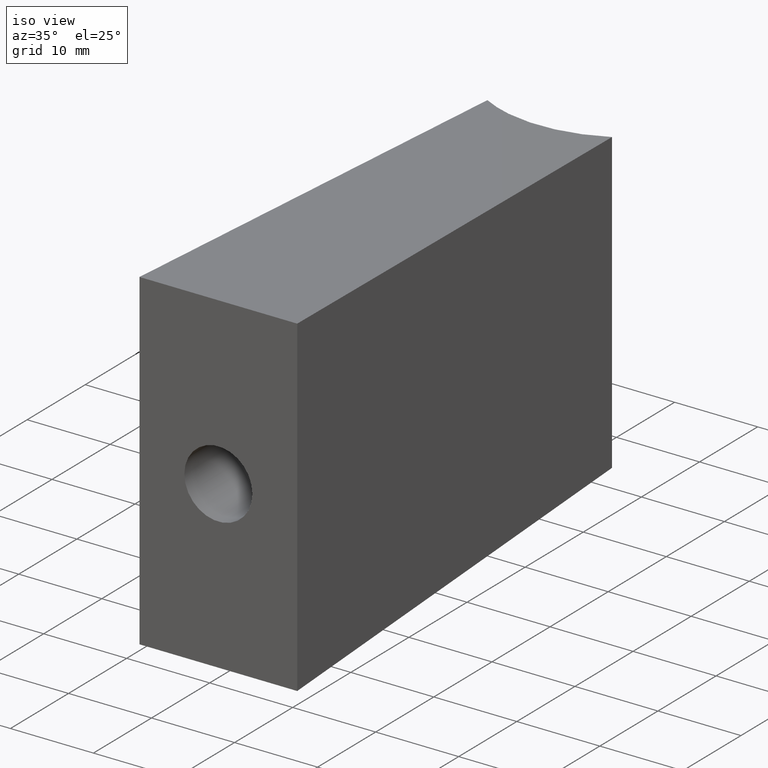
[diagram: clean part render]
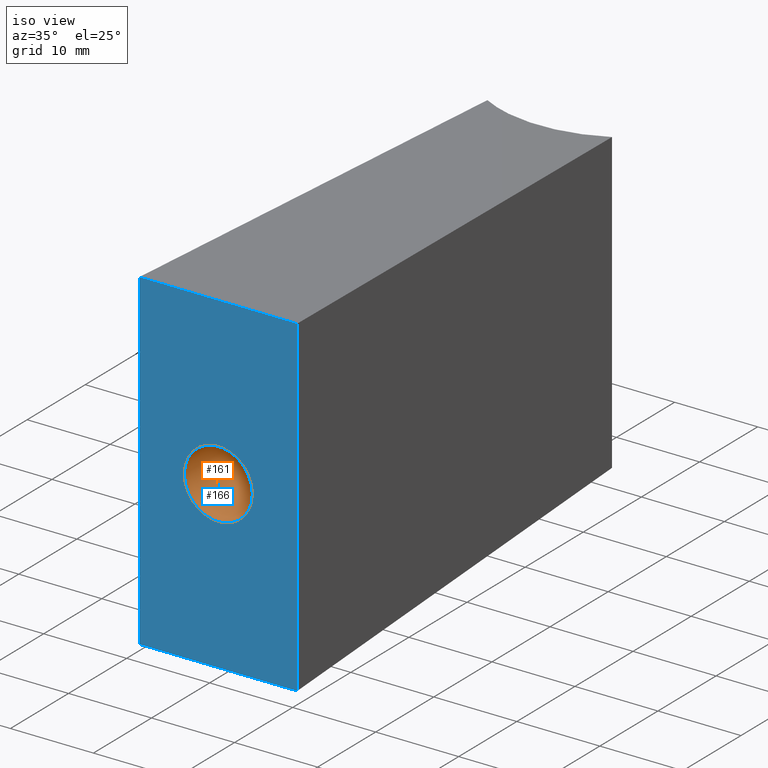
[diagram: same view with the hole feature highlighted: cylindrical wall and planar end face, labeled with their STEP entity ids]
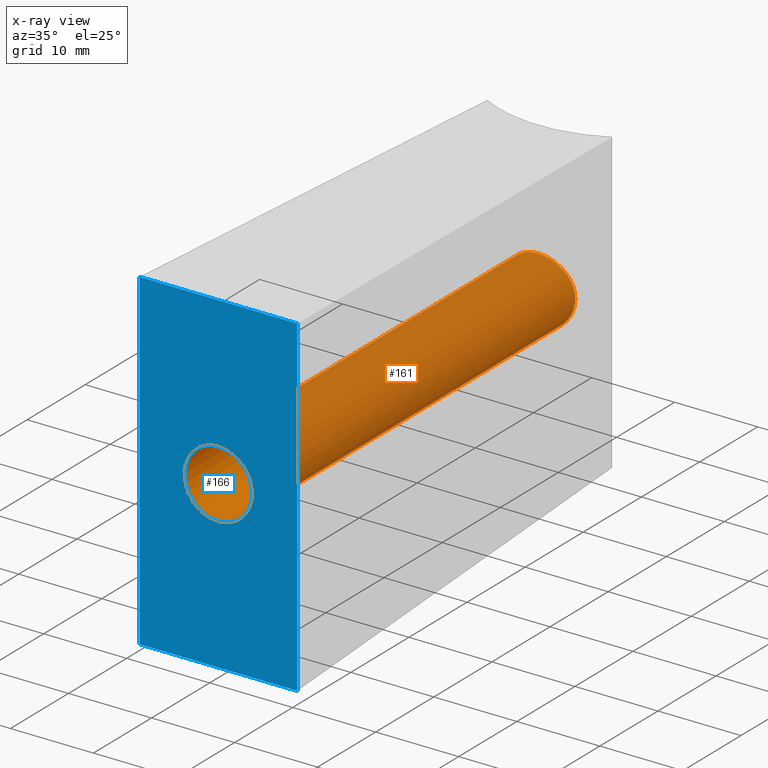
[diagram: x-ray of the same camera — body ghosted, the hole faces saturated]
A machine part, iso view. The highlighted faces form one hole feature of diameter 8.2 mm: the cylindrical wall (entity #161, orange) and its adjacent planar end face (entity #166, blue) — they share a circular edge in the B-rep.
The next image is the same camera in x-ray (body ghosted, the hole faces saturated) — the bore reads through the body.
Wall:
#15=CIRCLE('',#175,4.1);
#24=FACE_BOUND('',#41,.T.);
#26=B_SPLINE_CURVE_WITH_KNOTS('',3,(#234,#235,#236,#237,#238,#239,#240,
#241,#242,#243,#244,#245,#246,#247,#248,#249,#250,#251,#252,#253,#254,#255,
#256,#257,#258,#259,#260,#261,#262,#263,#264,#265,#266,#267),
 .UNSPECIFIED.,.T.,.F.,(4,2,2,2,2,2,2,2,2,2,2,2,2,2,2,2,4),(0.,0.155312931765757,
0.310625863531513,0.465907391265895,0.621188919000277,0.776470446734659,
0.931751974469041,1.0870649062348,1.24237783800055,1.39769076976631,1.55300370153207,
1.70828522926645,1.86356675700083,2.01884828473521,2.1741298124696,2.32944274423535,
2.48475567600111),.UNSPECIFIED.);
#30=FACE_OUTER_BOUND('',#40,.T.);
#40=EDGE_LOOP('',(#131));
#41=EDGE_LOOP('',(#132));
#86=VERTEX_POINT('',#233);
#92=VERTEX_POINT('',#283);
#100=EDGE_CURVE('',#86,#86,#26,.T.);
#108=EDGE_CURVE('',#92,#92,#15,.T.);
#131=ORIENTED_EDGE('',*,*,#100,.T.);
#132=ORIENTED_EDGE('',*,*,#108,.F.);
#157=CYLINDRICAL_SURFACE('',#174,4.1);
#161=ADVANCED_FACE('',(#30,#24),#157,.F.);
#174=AXIS2_PLACEMENT_3D('',#282,#202,#203);
#175=AXIS2_PLACEMENT_3D('',#284,#204,#205);
#202=DIRECTION('center_axis',(0.,-1.,0.));
#203=DIRECTION('ref_axis',(1.,0.,0.));
#204=DIRECTION('center_axis',(0.,1.,0.));
#205=DIRECTION('ref_axis',(1.,0.,0.));
#233=CARTESIAN_POINT('',(4.1,27.0712093368848,0.));
#234=CARTESIAN_POINT('Ctrl Pts',(4.1,27.0712093368848,0.));
#235=CARTESIAN_POINT('Ctrl Pts',(4.1,27.0712093368848,-0.517709772552522));
#236=CARTESIAN_POINT('Ctrl Pts',(3.99599394330733,27.0404371714704,-1.06800699058504));
#237=CARTESIAN_POINT('Ctrl Pts',(3.57678481590098,26.9310764424968,-2.07731045986194));
#238=CARTESIAN_POINT('Ctrl Pts',(3.26171334312637,26.8542569852714,-2.53656226260332));
#239=CARTESIAN_POINT('Ctrl Pts',(2.53663557480928,26.711423762681,-3.26164003092041));
#240=CARTESIAN_POINT('Ctrl Pts',(2.07735356602485,26.6358767058198,-3.57676849745034));
#241=CARTESIAN_POINT('Ctrl Pts',(1.06794181394767,26.5294602833011,-3.99601942858612));
#242=CARTESIAN_POINT('Ctrl Pts',(0.517605092447941,26.5,-4.1));
#243=CARTESIAN_POINT('Ctrl Pts',(-0.51760509244794,26.5,-4.1));
#244=CARTESIAN_POINT('Ctrl Pts',(-1.06794181394767,26.5294602833011,-3.99601942858612));
#245=CARTESIAN_POINT('Ctrl Pts',(-2.07735356602485,26.6358767058198,-3.57676849745034));
#246=CARTESIAN_POINT('Ctrl Pts',(-2.53663557480928,26.711423762681,-3.26164003092041));
#247=CARTESIAN_POINT('Ctrl Pts',(-3.26171334312637,26.8542569852714,-2.53656226260332));
#248=CARTESIAN_POINT('Ctrl Pts',(-3.57678481590098,26.9310764424968,-2.07731045986194));
#249=CARTESIAN_POINT('Ctrl Pts',(-3.99599394330733,27.0404371714704,-1.06800699058504));
#250=CARTESIAN_POINT('Ctrl Pts',(-4.1,27.0712093368848,-0.517709772552521));
#251=CARTESIAN_POINT('Ctrl Pts',(-4.1,27.0712093368848,0.517709772552521));
#252=CARTESIAN_POINT('Ctrl Pts',(-3.99599394330733,27.0404371714704,1.06800699058503));
#253=CARTESIAN_POINT('Ctrl Pts',(-3.57678481590098,26.9310764424968,2.07731045986194));
#254=CARTESIAN_POINT('Ctrl Pts',(-3.26171334312637,26.8542569852714,2.53656226260332));
#255=CARTESIAN_POINT('Ctrl Pts',(-2.53663557480928,26.711423762681,3.26164003092041));
#256=CARTESIAN_POINT('Ctrl Pts',(-2.07735356602485,26.6358767058198,3.57676849745034));
#257=CARTESIAN_POINT('Ctrl Pts',(-1.06794181394767,26.5294602833011,3.99601942858612));
#258=CARTESIAN_POINT('Ctrl Pts',(-0.517605092447941,26.5,4.1));
#259=CARTESIAN_POINT('Ctrl Pts',(0.51760509244794,26.5,4.1));
#260=CARTESIAN_POINT('Ctrl Pts',(1.06794181394767,26.5294602833011,3.99601942858612));
#261=CARTESIAN_POINT('Ctrl Pts',(2.07735356602485,26.6358767058198,3.57676849745034));
#262=CARTESIAN_POINT('Ctrl Pts',(2.53663557480928,26.711423762681,3.26164003092041));
#263=CARTESIAN_POINT('Ctrl Pts',(3.26171334312637,26.8542569852714,2.53656226260332));
#264=CARTESIAN_POINT('Ctrl Pts',(3.57678481590098,26.9310764424968,2.07731045986194));
#265=CARTESIAN_POINT('Ctrl Pts',(3.99599394330733,27.0404371714704,1.06800699058504));
#266=CARTESIAN_POINT('Ctrl Pts',(4.1,27.0712093368848,0.517709772552523));
#267=CARTESIAN_POINT('Ctrl Pts',(4.1,27.0712093368848,1.38777878078145E-16));
#282=CARTESIAN_POINT('Origin',(0.,43.6803297304744,0.));
#283=CARTESIAN_POINT('',(4.1,-28.5,0.));
#284=CARTESIAN_POINT('Origin',(0.,-28.5,0.));
End face:
#15=CIRCLE('',#175,4.1);
#22=PLANE('',#180);
#25=FACE_BOUND('',#47,.T.);
#35=FACE_OUTER_BOUND('',#46,.T.);
#46=EDGE_LOOP('',(#151,#152,#153,#154));
#47=EDGE_LOOP('',(#155));
#52=LINE('',#274,#68);
#59=LINE('',#291,#75);
#62=LINE('',#296,#78);
#63=LINE('',#298,#79);
#68=VECTOR('',#195,19.);
#75=VECTOR('',#210,19.);
#78=VECTOR('',#217,40.);
#79=VECTOR('',#220,40.);
#88=VERTEX_POINT('',#271);
#89=VERTEX_POINT('',#273);
#92=VERTEX_POINT('',#283);
#94=VERTEX_POINT('',#288);
#95=VERTEX_POINT('',#290);
#103=EDGE_CURVE('',#88,#89,#52,.T.);
#108=EDGE_CURVE('',#92,#92,#15,.T.);
#111=EDGE_CURVE('',#94,#95,#59,.T.);
#114=EDGE_CURVE('',#95,#88,#62,.T.);
#115=EDGE_CURVE('',#94,#89,#63,.T.);
#151=ORIENTED_EDGE('',*,*,#114,.F.);
#152=ORIENTED_EDGE('',*,*,#111,.F.);
#153=ORIENTED_EDGE('',*,*,#115,.T.);
#154=ORIENTED_EDGE('',*,*,#103,.F.);
#155=ORIENTED_EDGE('',*,*,#108,.T.);
#166=ADVANCED_FACE('',(#35,#25),#22,.T.);
#175=AXIS2_PLACEMENT_3D('',#284,#204,#205);
#180=AXIS2_PLACEMENT_3D('',#299,#221,#222);
#195=DIRECTION('',(-1.,0.,0.));
#204=DIRECTION('center_axis',(0.,1.,0.));
#205=DIRECTION('ref_axis',(1.,0.,0.));
#210=DIRECTION('',(1.,0.,0.));
#217=DIRECTION('',(0.,0.,-1.));
#220=DIRECTION('',(0.,0.,-1.));
#221=DIRECTION('center_axis',(0.,-1.,0.));
#222=DIRECTION('ref_axis',(1.,0.,0.));
#271=CARTESIAN_POINT('',(9.5,-28.5,-20.));
#273=CARTESIAN_POINT('',(-9.5,-28.5,-20.));
#274=CARTESIAN_POINT('',(9.5,-28.5,-20.));
#283=CARTESIAN_POINT('',(4.1,-28.5,0.));
#284=CARTESIAN_POINT('Origin',(0.,-28.5,0.));
#288=CARTESIAN_POINT('',(-9.5,-28.5,20.));
#290=CARTESIAN_POINT('',(9.5,-28.5,20.));
#291=CARTESIAN_POINT('',(9.5,-28.5,20.));
#296=CARTESIAN_POINT('',(9.5,-28.5,0.));
#298=CARTESIAN_POINT('',(-9.5,-28.5,0.));
#299=CARTESIAN_POINT('Origin',(-9.5,-28.5,0.));